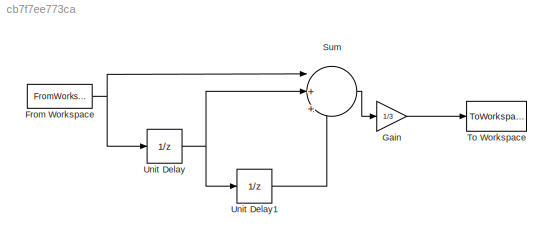
MODEL slx_cb7f7ee773ca
KIND model
BLOCK [FromWorkspace] From Workspace
  SampleTime = 0
  VariableName = [t',muneca]
  ZeroCross = on
BLOCK [Gain] Gain
  Gain = 1/3
  OutDataTypeStr = Inherit: Inherit via internal rule
  ParamDataTypeStr = Inherit: Inherit via internal rule
  SaturateOnIntegerOverflow = off
BLOCK [Sum] Sum
  IconShape = round
  InputSameDT = off
  Inputs = |+++
  OutDataTypeStr = Inherit: Inherit via internal rule
  Ports = [3, 1]
  SaturateOnIntegerOverflow = off
BLOCK [ToWorkspace] To Workspace
  FixptAsFi = on
  MaxDataPoints = N
  Ports = [1]
  SampleTime = -1
  VariableName = yout
BLOCK [UnitDelay] Unit Delay
  InputProcessing = Elements as channels (sample based)
  SampleTime = -1
BLOCK [UnitDelay] Unit Delay1
  InputProcessing = Elements as channels (sample based)
  SampleTime = -1
NET From Workspace:1 -> Sum:1, Unit Delay:1
LINE Gain:1 -> To Workspace:1
LINE Sum:1 -> Gain:1
LINE Unit Delay1:1 -> Sum:3
NET Unit Delay:1 -> Sum:2, Unit Delay1:1
note: NET lines group one-source signal fan-out (src -> all destinations, sorted); 1:1 wires keep LINE
